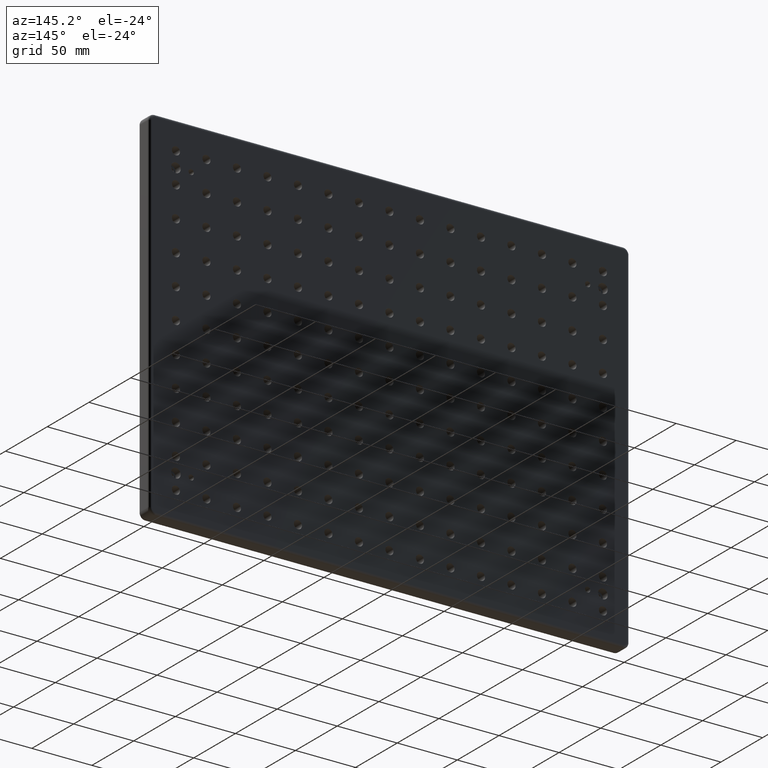
[diagram: clean part render]
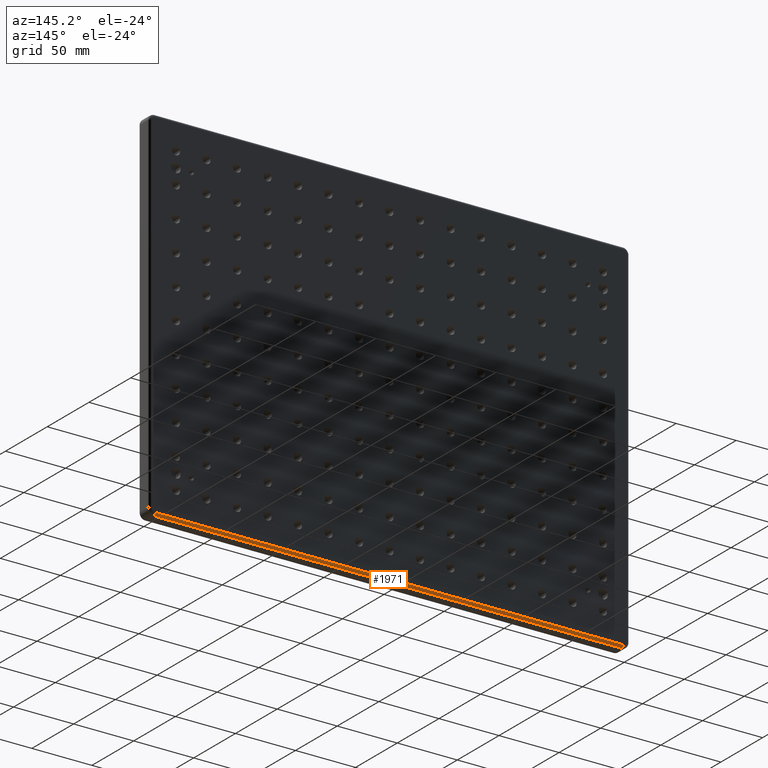
[diagram: same view with one face highlighted and labeled with its STEP entity id]
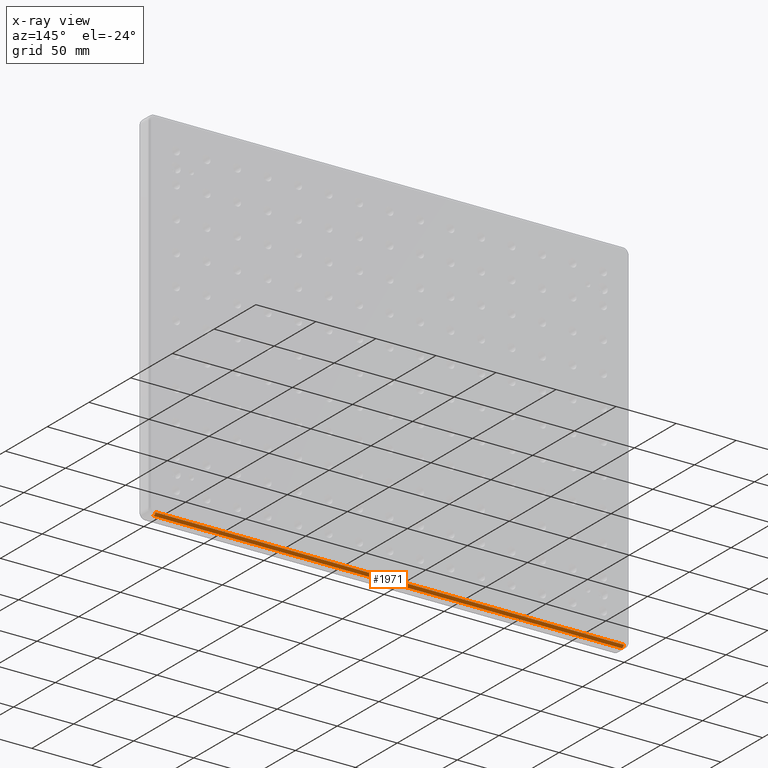
[diagram: x-ray of the same camera — body ghosted, the highlighted face saturated]
A machine part, auxiliary view. The second image highlights one B-rep face of the part: STEP entity #1971.
The next image is the same camera in x-ray: the body ghosted, the highlighted face saturated — about 0% of this face is hidden behind the body in this view.
In plain terms, the highlighted cylindrical surface (edge-blend (fillet) strip) has radius 2 mm, axis along (-1, 0, 0).
Its self-contained STEP definition (entity closure, byte-faithful):
#141 = CARTESIAN_POINT ( 'NONE',  ( -200.0000000000000000, 6.500000000000000000, -148.0000000000000000 ) ) ;
#198 = VERTEX_POINT ( 'NONE', #9921 ) ;
#428 = EDGE_CURVE ( 'NONE', #9887, #198, #9483, .T. ) ;
#501 = EDGE_CURVE ( 'NONE', #3879, #12122, #6274, .T. ) ;
#1322 = CIRCLE ( 'NONE', #3793, 2.000000000000001800 ) ;
#1466 = DIRECTION ( 'NONE',  ( 0.0000000000000000000, 0.0000000000000000000, 1.000000000000000000 ) ) ;
#1971 = ADVANCED_FACE ( 'NONE', ( #6470 ), #3946, .T. ) ;
#2077 = ORIENTED_EDGE ( 'NONE', *, *, #501, .F. ) ;
#2452 = CARTESIAN_POINT ( 'NONE',  ( 195.0000000000000000, 6.500000000000000000, -148.0000000000000000 ) ) ;
#3793 = AXIS2_PLACEMENT_3D ( 'NONE', #9492, #3991, #4134 ) ;
#3879 = VERTEX_POINT ( 'NONE', #2452 ) ;
#3946 = CYLINDRICAL_SURFACE ( 'NONE', #11122, 2.000000000000001800 ) ;
#3991 = DIRECTION ( 'NONE',  ( -1.000000000000000000, 0.0000000000000000000, 0.0000000000000000000 ) ) ;
#4134 = DIRECTION ( 'NONE',  ( 0.0000000000000000000, 0.0000000000000000000, 1.000000000000000000 ) ) ;
#4256 = CARTESIAN_POINT ( 'NONE',  ( -195.0000000000000000, 6.500000000000000000, -148.0000000000000000 ) ) ;
#5848 = DIRECTION ( 'NONE',  ( -1.000000000000000000, 0.0000000000000000000, 0.0000000000000000000 ) ) ;
#6108 = ORIENTED_EDGE ( 'NONE', *, *, #13726, .T. ) ;
#6274 = LINE ( 'NONE', #141, #10662 ) ;
#6470 = FACE_OUTER_BOUND ( 'NONE', #7407, .T. ) ;
#6624 = VECTOR ( 'NONE', #9437, 1000.000000000000000 ) ;
#7162 = ORIENTED_EDGE ( 'NONE', *, *, #428, .F. ) ;
#7407 = EDGE_LOOP ( 'NONE', ( #6108, #7162, #11996, #2077 ) ) ;
#7977 = DIRECTION ( 'NONE',  ( 0.0000000000000000000, 0.0000000000000000000, 1.000000000000000000 ) ) ;
#9302 = CARTESIAN_POINT ( 'NONE',  ( -200.0000000000000000, 4.500000000000000000, -150.0000000000000000 ) ) ;
#9437 = DIRECTION ( 'NONE',  ( 1.000000000000000000, -0.0000000000000000000, -0.0000000000000000000 ) ) ;
#9483 = LINE ( 'NONE', #9302, #6624 ) ;
#9492 = CARTESIAN_POINT ( 'NONE',  ( 195.0000000000000000, 4.500000000000000000, -148.0000000000000000 ) ) ;
#9653 = AXIS2_PLACEMENT_3D ( 'NONE', #10705, #11086, #1466 ) ;
#9887 = VERTEX_POINT ( 'NONE', #13548 ) ;
#9921 = CARTESIAN_POINT ( 'NONE',  ( 195.0000000000000000, 4.500000000000000000, -150.0000000000000000 ) ) ;
#10662 = VECTOR ( 'NONE', #13062, 1000.000000000000000 ) ;
#10705 = CARTESIAN_POINT ( 'NONE',  ( -195.0000000000000000, 4.500000000000000000, -148.0000000000000000 ) ) ;
#11086 = DIRECTION ( 'NONE',  ( -1.000000000000000000, 0.0000000000000000000, 0.0000000000000000000 ) ) ;
#11122 = AXIS2_PLACEMENT_3D ( 'NONE', #11179, #5848, #7977 ) ;
#11179 = CARTESIAN_POINT ( 'NONE',  ( -200.0000000000000000, 4.500000000000000000, -148.0000000000000000 ) ) ;
#11996 = ORIENTED_EDGE ( 'NONE', *, *, #12892, .F. ) ;
#12122 = VERTEX_POINT ( 'NONE', #4256 ) ;
#12892 = EDGE_CURVE ( 'NONE', #12122, #9887, #13748, .T. ) ;
#13062 = DIRECTION ( 'NONE',  ( -1.000000000000000000, 0.0000000000000000000, 0.0000000000000000000 ) ) ;
#13548 = CARTESIAN_POINT ( 'NONE',  ( -195.0000000000000000, 4.500000000000000000, -150.0000000000000000 ) ) ;
#13726 = EDGE_CURVE ( 'NONE', #3879, #198, #1322, .T. ) ;
#13748 = CIRCLE ( 'NONE', #9653, 2.000000000000001800 ) ;